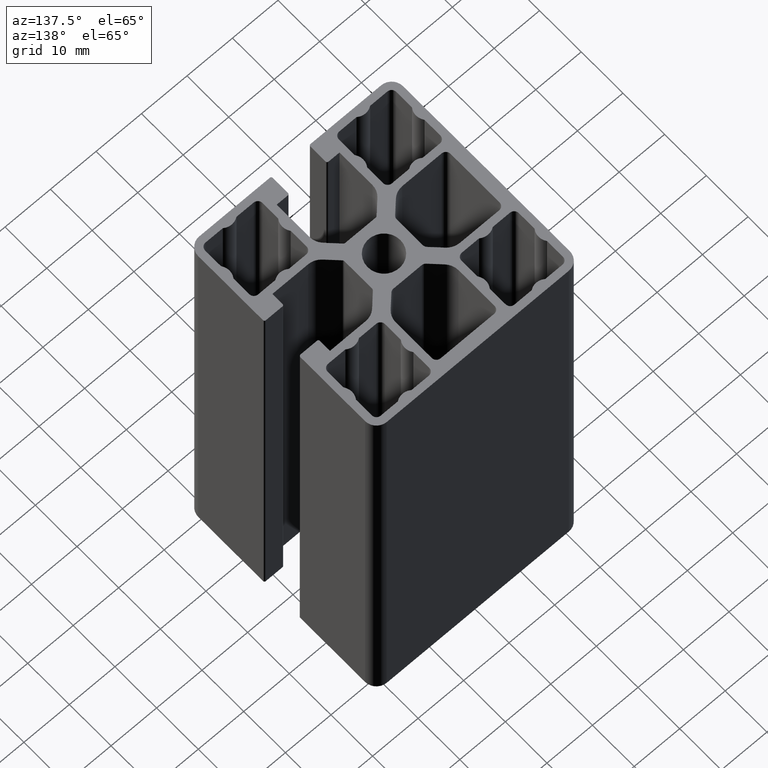
[diagram: clean part render]
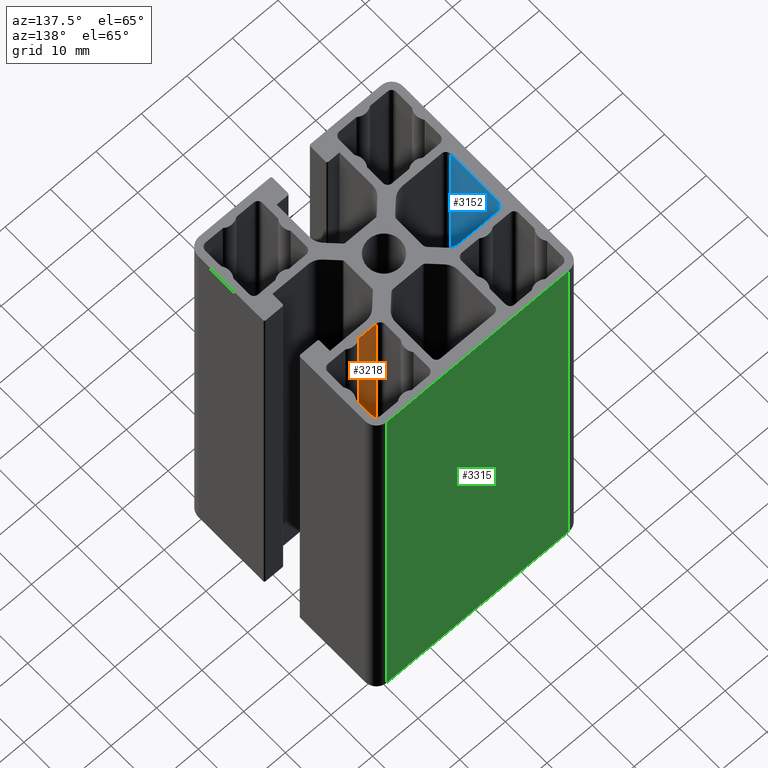
[diagram: same view with three faces highlighted in distinct colors, each labeled with its STEP entity id]
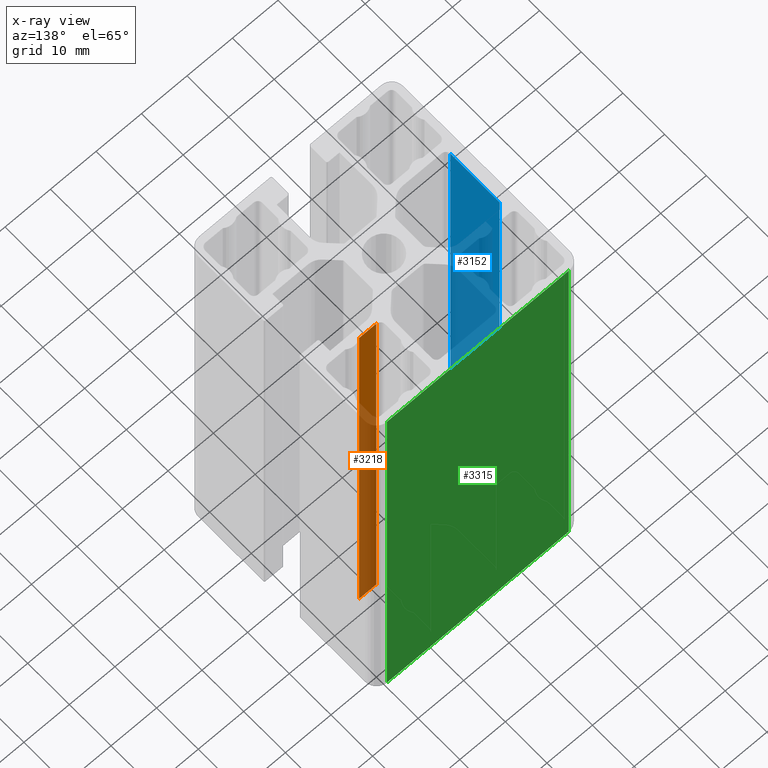
[diagram: x-ray of the same camera — body ghosted, the three highlighted faces saturated]
A machine part, auxiliary view with three faces highlighted in distinct colors.
The next image is the same camera in x-ray (body ghosted, the three faces saturated) — at least one of them is partly hidden behind the body in this view.
Their STEP definitions:

[orange] entity #3218 — the highlighted planar face has unit normal (-0, -1, 0).
#387=FACE_OUTER_BOUND('',#554,.T.);
#554=EDGE_LOOP('',(#2358,#2359,#2360,#2361));
#788=LINE('',#5105,#1088);
#789=LINE('',#5108,#1089);
#790=LINE('',#5110,#1090);
#791=LINE('',#5111,#1091);
#1088=VECTOR('',#4094,100.);
#1089=VECTOR('',#4097,3.76702902834128);
#1090=VECTOR('',#4098,3.76702902834128);
#1091=VECTOR('',#4099,100.);
#1402=VERTEX_POINT('',#5101);
#1403=VERTEX_POINT('',#5103);
#1404=VERTEX_POINT('',#5107);
#1405=VERTEX_POINT('',#5109);
#1798=EDGE_CURVE('',#1403,#1402,#788,.T.);
#1799=EDGE_CURVE('',#1402,#1404,#789,.T.);
#1800=EDGE_CURVE('',#1405,#1403,#790,.T.);
#1801=EDGE_CURVE('',#1405,#1404,#791,.T.);
#2358=ORIENTED_EDGE('',*,*,#1799,.F.);
#2359=ORIENTED_EDGE('',*,*,#1798,.F.);
#2360=ORIENTED_EDGE('',*,*,#1800,.F.);
#2361=ORIENTED_EDGE('',*,*,#1801,.T.);
#3108=PLANE('',#3467);
#3218=ADVANCED_FACE('',(#387),#3108,.F.);
#3467=AXIS2_PLACEMENT_3D('',#5106,#4095,#4096);
#4094=DIRECTION('',(0.,0.,1.));
#4095=DIRECTION('center_axis',(-1.06246964747602E-12,-1.,0.));
#4096=DIRECTION('ref_axis',(1.,-1.06243902564529E-12,0.));
#4097=DIRECTION('',(-1.,1.06246964747602E-12,0.));
#4098=DIRECTION('',(1.,-1.06246964747602E-12,0.));
#4099=DIRECTION('',(0.,0.,1.));
#5101=CARTESIAN_POINT('',(13.1670290283413,8.39999999999999,100.));
#5103=CARTESIAN_POINT('',(13.1670290283413,8.39999999999999,0.));
#5105=CARTESIAN_POINT('',(13.1670290283413,8.39999999999999,0.));
#5106=CARTESIAN_POINT('Origin',(9.4,8.400000000004,0.));
#5107=CARTESIAN_POINT('',(9.4,8.400000000004,100.));
#5108=CARTESIAN_POINT('',(4.70000000000446,8.40000000000899,100.));
#5109=CARTESIAN_POINT('',(9.4,8.400000000004,0.));
#5110=CARTESIAN_POINT('',(4.70000000000446,8.40000000000899,0.));
#5111=CARTESIAN_POINT('',(9.4,8.400000000004,0.));

[blue] entity #3152 — the highlighted planar face has unit normal (-1, -0, 0).
#321=FACE_OUTER_BOUND('',#488,.T.);
#488=EDGE_LOOP('',(#2094,#2095,#2096,#2097));
#670=LINE('',#4710,#970);
#671=LINE('',#4712,#971);
#672=LINE('',#4714,#972);
#673=LINE('',#4715,#973);
#970=VECTOR('',#3686,11.8);
#971=VECTOR('',#3687,100.);
#972=VECTOR('',#3688,11.8);
#973=VECTOR('',#3689,100.);
#1270=VERTEX_POINT('',#4708);
#1271=VERTEX_POINT('',#4709);
#1272=VERTEX_POINT('',#4711);
#1273=VERTEX_POINT('',#4713);
#1600=EDGE_CURVE('',#1270,#1271,#670,.T.);
#1601=EDGE_CURVE('',#1272,#1270,#671,.T.);
#1602=EDGE_CURVE('',#1273,#1272,#672,.T.);
#1603=EDGE_CURVE('',#1273,#1271,#673,.T.);
#2094=ORIENTED_EDGE('',*,*,#1600,.F.);
#2095=ORIENTED_EDGE('',*,*,#1601,.F.);
#2096=ORIENTED_EDGE('',*,*,#1602,.F.);
#2097=ORIENTED_EDGE('',*,*,#1603,.T.);
#3082=PLANE('',#3321);
#3152=ADVANCED_FACE('',(#321),#3082,.F.);
#3321=AXIS2_PLACEMENT_3D('',#4707,#3684,#3685);
#3684=DIRECTION('center_axis',(-1.,-3.38523935813671E-13,0.));
#3685=DIRECTION('ref_axis',(3.38573613589688E-13,-1.,0.));
#3686=DIRECTION('',(-3.38523935813671E-13,1.,0.));
#3687=DIRECTION('',(0.,0.,1.));
#3688=DIRECTION('',(3.38523935813671E-13,-1.,0.));
#3689=DIRECTION('',(0.,0.,1.));
#4707=CARTESIAN_POINT('Origin',(-20.,5.90000000000001,0.));
#4708=CARTESIAN_POINT('',(-19.999999999996,-5.89999999999999,100.));
#4709=CARTESIAN_POINT('',(-20.,5.90000000000001,100.));
#4710=CARTESIAN_POINT('',(-19.999999999999,2.94999999999662,100.));
#4711=CARTESIAN_POINT('',(-19.999999999996,-5.89999999999999,0.));
#4712=CARTESIAN_POINT('',(-19.999999999996,-5.89999999999999,0.));
#4713=CARTESIAN_POINT('',(-20.,5.90000000000001,0.));
#4714=CARTESIAN_POINT('',(-19.999999999999,2.94999999999662,0.));
#4715=CARTESIAN_POINT('',(-20.,5.90000000000001,0.));

[green] entity #3315 — the highlighted planar face has unit normal (-0, 1, 0).
#484=FACE_OUTER_BOUND('',#659,.T.);
#659=EDGE_LOOP('',(#2905,#2906,#2907,#2908));
#956=LINE('',#5658,#1256);
#966=LINE('',#5687,#1266);
#967=LINE('',#5691,#1267);
#968=LINE('',#5692,#1268);
#1256=VECTOR('',#4660,40.);
#1266=VECTOR('',#4690,100.);
#1267=VECTOR('',#4695,100.);
#1268=VECTOR('',#4696,40.);
#1588=VERTEX_POINT('',#5655);
#1589=VERTEX_POINT('',#5657);
#1598=VERTEX_POINT('',#5686);
#1599=VERTEX_POINT('',#5690);
#2073=EDGE_CURVE('',#1589,#1588,#956,.T.);
#2088=EDGE_CURVE('',#1598,#1589,#966,.T.);
#2090=EDGE_CURVE('',#1599,#1588,#967,.T.);
#2091=EDGE_CURVE('',#1598,#1599,#968,.T.);
#2905=ORIENTED_EDGE('',*,*,#2073,.T.);
#2906=ORIENTED_EDGE('',*,*,#2090,.F.);
#2907=ORIENTED_EDGE('',*,*,#2091,.F.);
#2908=ORIENTED_EDGE('',*,*,#2088,.T.);
#3149=PLANE('',#3677);
#3315=ADVANCED_FACE('',(#484),#3149,.T.);
#3677=AXIS2_PLACEMENT_3D('',#5689,#4693,#4694);
#4660=DIRECTION('',(1.,1.11022302462516E-16,0.));
#4690=DIRECTION('',(0.,0.,1.));
#4693=DIRECTION('center_axis',(-1.11022302462516E-16,1.,0.));
#4694=DIRECTION('ref_axis',(-1.,0.,0.));
#4695=DIRECTION('',(0.,0.,1.));
#4696=DIRECTION('',(1.,1.11022302462516E-16,0.));
#5655=CARTESIAN_POINT('',(20.,22.5,100.));
#5657=CARTESIAN_POINT('',(-20.,22.5,100.));
#5658=CARTESIAN_POINT('',(9.99999999999999,22.5,100.));
#5686=CARTESIAN_POINT('',(-20.,22.5,0.));
#5687=CARTESIAN_POINT('',(-20.,22.5,0.));
#5689=CARTESIAN_POINT('Origin',(20.,22.5,0.));
#5690=CARTESIAN_POINT('',(20.,22.5,0.));
#5691=CARTESIAN_POINT('',(20.,22.5,0.));
#5692=CARTESIAN_POINT('',(9.99999999999999,22.5,0.));